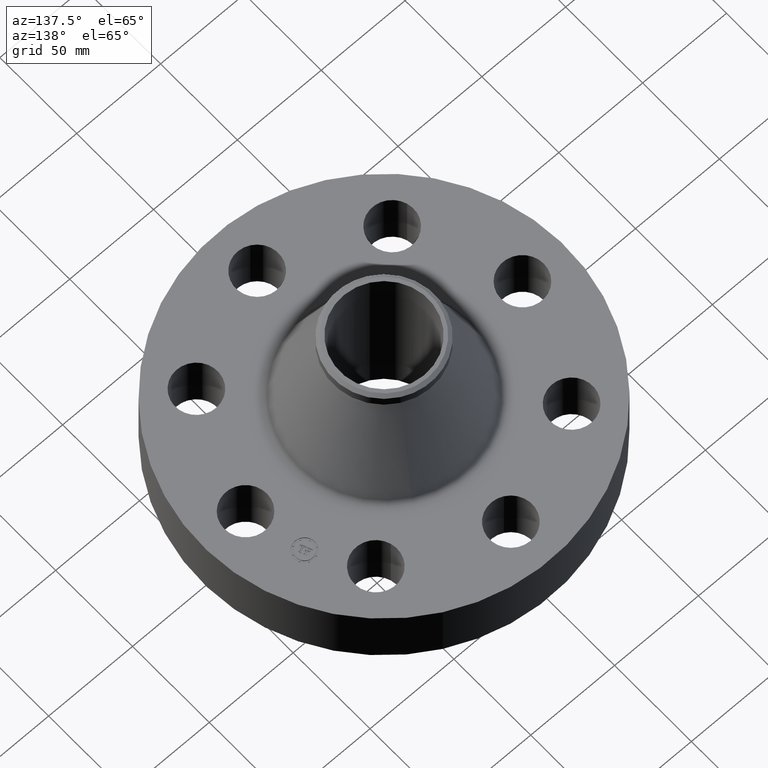
[diagram: clean part render]
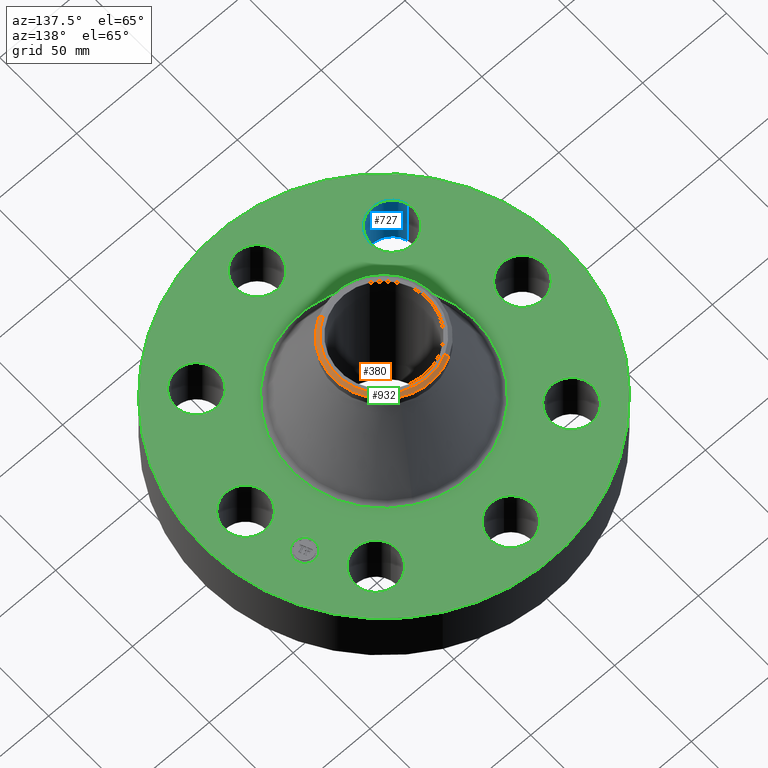
[diagram: same view with three faces highlighted in distinct colors, each labeled with its STEP entity id]
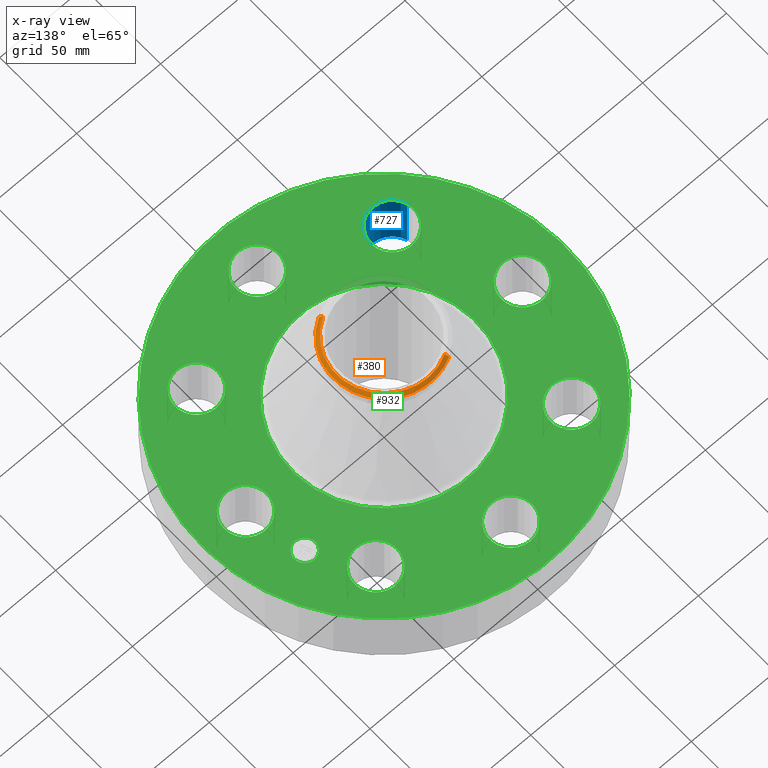
[diagram: x-ray of the same camera — body ghosted, the three highlighted faces saturated]
A machine part, auxiliary view with three faces highlighted in distinct colors.
The next image is the same camera in x-ray (body ghosted, the three faces saturated) — at least one of them is partly hidden behind the body in this view.
Their STEP definitions:

[orange] entity #380 — the highlighted conical surface has half-angle 52.5 deg.
#270=AXIS2_PLACEMENT_3D('Circle Axis2P3D',#268,#269,$) ;
#297=AXIS2_PLACEMENT_3D('Circle Axis2P3D',#295,#296,$) ;
#311=AXIS2_PLACEMENT_3D('Cone Axis2P3D',#308,#309,#310) ;
#347=AXIS2_PLACEMENT_3D('Circle Axis2P3D',#345,#346,$) ;
#265=CARTESIAN_POINT('Vertex',(0.570516390941,1.04432324865,3.94033277427)) ;
#268=CARTESIAN_POINT('Axis2P3D Location',(0.,0.,3.94033277427)) ;
#272=CARTESIAN_POINT('Vertex',(0.570516390941,-1.04432324865,3.94033277427)) ;
#292=CARTESIAN_POINT('Vertex',(-0.570516390941,1.04432324865,3.94033277427)) ;
#295=CARTESIAN_POINT('Axis2P3D Location',(0.,0.,3.94033277427)) ;
#308=CARTESIAN_POINT('Axis2P3D Location',(0.,0.,4.00000000002)) ;
#313=CARTESIAN_POINT('Line Origine',(0.55187636375,-1.01020290775,3.97016638714)) ;
#317=CARTESIAN_POINT('Vertex',(0.533236336559,-0.976082566843,4.00000000002)) ;
#324=CARTESIAN_POINT('Vertex',(-0.533236336559,0.976082566843,4.00000000002)) ;
#327=CARTESIAN_POINT('Line Origine',(-0.55187636375,1.01020290775,3.97016638714)) ;
#345=CARTESIAN_POINT('Axis2P3D Location',(0.,0.,4.00000000002)) ;
#269=DIRECTION('Axis2P3D Direction',(0.,0.,-0.0393700787402)) ;
#296=DIRECTION('Axis2P3D Direction',(0.,0.,-0.0393700787402)) ;
#309=DIRECTION('Axis2P3D Direction',(-0.,-0.,-0.0393700787402)) ;
#310=DIRECTION('Axis2P3D XDirection',(-0.0188750212049,0.0345504945626,0.)) ;
#314=DIRECTION('Vector Direction',(0.014974561121,-0.02741075027,-0.023966985394)) ;
#328=DIRECTION('Vector Direction',(-0.014974561121,0.02741075027,-0.023966985394)) ;
#346=DIRECTION('Axis2P3D Direction',(0.,0.,-0.0393700787402)) ;
#315=VECTOR('Line Direction',#314,0.0393700787402) ;
#329=VECTOR('Line Direction',#328,0.0393700787402) ;
#374=ORIENTED_EDGE('',*,*,#331,.F.) ;
#375=ORIENTED_EDGE('',*,*,#349,.F.) ;
#376=ORIENTED_EDGE('',*,*,#319,.T.) ;
#377=ORIENTED_EDGE('',*,*,#274,.T.) ;
#378=ORIENTED_EDGE('',*,*,#299,.F.) ;
#380=ADVANCED_FACE('PartBody',(#379),#312,.T.) ;
#271=CIRCLE('generated circle',#270,1.19) ;
#298=CIRCLE('generated circle',#297,1.19) ;
#348=CIRCLE('generated circle',#347,1.11224015748) ;
#312=CONICAL_SURFACE('Cone',#311,1.11224015748,0.916297857297) ;
#274=EDGE_CURVE('',#273,#266,#271,.F.) ;
#299=EDGE_CURVE('',#293,#266,#298,.T.) ;
#319=EDGE_CURVE('',#318,#273,#316,.T.) ;
#331=EDGE_CURVE('',#325,#293,#330,.T.) ;
#349=EDGE_CURVE('',#318,#325,#348,.F.) ;
#373=EDGE_LOOP('',(#374,#375,#376,#377,#378)) ;
#379=FACE_OUTER_BOUND('',#373,.T.) ;
#316=LINE('Line',#313,#315) ;
#330=LINE('Line',#327,#329) ;
#266=VERTEX_POINT('',#265) ;
#273=VERTEX_POINT('',#272) ;
#293=VERTEX_POINT('',#292) ;
#318=VERTEX_POINT('',#317) ;
#325=VERTEX_POINT('',#324) ;

[blue] entity #727 — the highlighted cylindrical surface (edge-blend (fillet) strip) has radius 12.7 mm, axis along (-0, 0, -1).
#479=AXIS2_PLACEMENT_3D('Circle Axis2P3D',#477,#478,$) ;
#700=AXIS2_PLACEMENT_3D('Cylinder Axis2P3D',#697,#698,#699) ;
#718=AXIS2_PLACEMENT_3D('Circle Axis2P3D',#716,#717,$) ;
#477=CARTESIAN_POINT('Axis2P3D Location',(-2.29809703887,-2.29809703887,0.)) ;
#481=CARTESIAN_POINT('Vertex',(-1.81832222387,-2.15732727329,0.)) ;
#483=CARTESIAN_POINT('Vertex',(-2.77787185386,-2.43886680444,0.)) ;
#697=CARTESIAN_POINT('Axis2P3D Location',(-2.29809703887,-2.29809703887,1.49606299213)) ;
#702=CARTESIAN_POINT('Line Origine',(-1.81832222387,-2.15732727329,0.750000000003)) ;
#706=CARTESIAN_POINT('Vertex',(-1.81832222387,-2.15732727329,1.50000000001)) ;
#709=CARTESIAN_POINT('Line Origine',(-2.77787185386,-2.43886680444,0.750000000003)) ;
#713=CARTESIAN_POINT('Vertex',(-2.77787185386,-2.43886680444,1.50000000001)) ;
#716=CARTESIAN_POINT('Axis2P3D Location',(-2.29809703887,-2.29809703887,1.50000000001)) ;
#478=DIRECTION('Axis2P3D Direction',(0.,0.,-0.0393700787402)) ;
#698=DIRECTION('Axis2P3D Direction',(-0.,0.,-0.0393700787402)) ;
#699=DIRECTION('Axis2P3D XDirection',(-0.0377775444876,-0.0110842335096,0.)) ;
#703=DIRECTION('Vector Direction',(0.,0.,-0.0393700787402)) ;
#710=DIRECTION('Vector Direction',(0.,0.,-0.0393700787402)) ;
#717=DIRECTION('Axis2P3D Direction',(-0.,0.,-0.0393700787402)) ;
#704=VECTOR('Line Direction',#703,0.0393700787402) ;
#711=VECTOR('Line Direction',#710,0.0393700787402) ;
#722=ORIENTED_EDGE('',*,*,#708,.F.) ;
#723=ORIENTED_EDGE('',*,*,#485,.T.) ;
#724=ORIENTED_EDGE('',*,*,#715,.T.) ;
#725=ORIENTED_EDGE('',*,*,#720,.F.) ;
#727=ADVANCED_FACE('PartBody',(#726),#701,.F.) ;
#480=CIRCLE('generated circle',#479,0.500000000002) ;
#719=CIRCLE('generated circle',#718,0.500000000002) ;
#701=CYLINDRICAL_SURFACE('generated cylinder',#700,0.500000000002) ;
#485=EDGE_CURVE('',#482,#484,#480,.T.) ;
#708=EDGE_CURVE('',#482,#707,#705,.F.) ;
#715=EDGE_CURVE('',#484,#714,#712,.F.) ;
#720=EDGE_CURVE('',#707,#714,#719,.T.) ;
#721=EDGE_LOOP('',(#722,#723,#724,#725)) ;
#726=FACE_OUTER_BOUND('',#721,.T.) ;
#705=LINE('Line',#702,#704) ;
#712=LINE('Line',#709,#711) ;
#482=VERTEX_POINT('',#481) ;
#484=VERTEX_POINT('',#483) ;
#707=VERTEX_POINT('',#706) ;
#714=VERTEX_POINT('',#713) ;

[green] entity #932 — the highlighted planar face has unit normal (0, 0, -1).
#65=AXIS2_PLACEMENT_3D('Circle Axis2P3D',#63,#64,$) ;
#82=AXIS2_PLACEMENT_3D('Circle Axis2P3D',#80,#81,$) ;
#115=AXIS2_PLACEMENT_3D('Circle Axis2P3D',#113,#114,$) ;
#139=AXIS2_PLACEMENT_3D('Circle Axis2P3D',#137,#138,$) ;
#156=AXIS2_PLACEMENT_3D('Circle Axis2P3D',#154,#155,$) ;
#191=AXIS2_PLACEMENT_3D('Circle Axis2P3D',#189,#190,$) ;
#589=AXIS2_PLACEMENT_3D('Circle Axis2P3D',#587,#588,$) ;
#601=AXIS2_PLACEMENT_3D('Circle Axis2P3D',#599,#600,$) ;
#632=AXIS2_PLACEMENT_3D('Circle Axis2P3D',#630,#631,$) ;
#644=AXIS2_PLACEMENT_3D('Circle Axis2P3D',#642,#643,$) ;
#675=AXIS2_PLACEMENT_3D('Circle Axis2P3D',#673,#674,$) ;
#687=AXIS2_PLACEMENT_3D('Circle Axis2P3D',#685,#686,$) ;
#718=AXIS2_PLACEMENT_3D('Circle Axis2P3D',#716,#717,$) ;
#730=AXIS2_PLACEMENT_3D('Circle Axis2P3D',#728,#729,$) ;
#761=AXIS2_PLACEMENT_3D('Circle Axis2P3D',#759,#760,$) ;
#773=AXIS2_PLACEMENT_3D('Circle Axis2P3D',#771,#772,$) ;
#804=AXIS2_PLACEMENT_3D('Circle Axis2P3D',#802,#803,$) ;
#816=AXIS2_PLACEMENT_3D('Circle Axis2P3D',#814,#815,$) ;
#847=AXIS2_PLACEMENT_3D('Circle Axis2P3D',#845,#846,$) ;
#859=AXIS2_PLACEMENT_3D('Circle Axis2P3D',#857,#858,$) ;
#872=AXIS2_PLACEMENT_3D('Plane Axis2P3D',#869,#870,#871) ;
#916=AXIS2_PLACEMENT_3D('Circle Axis2P3D',#914,#915,$) ;
#925=AXIS2_PLACEMENT_3D('Circle Axis2P3D',#923,#924,$) ;
#46=CARTESIAN_POINT('Vertex',(2.81120871907,0.239712769303,1.50000000001)) ;
#60=CARTESIAN_POINT('Vertex',(3.68879128096,-0.239712769303,1.50000000001)) ;
#63=CARTESIAN_POINT('Axis2P3D Location',(3.25000000001,0.,1.50000000001)) ;
#80=CARTESIAN_POINT('Axis2P3D Location',(3.25000000001,0.,1.50000000001)) ;
#110=CARTESIAN_POINT('Vertex',(-2.03755853908,-3.72972588805,1.50000000001)) ;
#113=CARTESIAN_POINT('Axis2P3D Location',(0.,0.,1.50000000001)) ;
#117=CARTESIAN_POINT('Vertex',(2.03755853908,3.72972588805,1.50000000001)) ;
#137=CARTESIAN_POINT('Axis2P3D Location',(0.,0.,1.50000000001)) ;
#154=CARTESIAN_POINT('Axis2P3D Location',(0.,0.,1.50000000001)) ;
#158=CARTESIAN_POINT('Vertex',(1.02675874759,1.87946928063,1.50000000001)) ;
#160=CARTESIAN_POINT('Vertex',(-1.02675874759,-1.87946928063,1.50000000001)) ;
#189=CARTESIAN_POINT('Axis2P3D Location',(0.,0.,1.50000000001)) ;
#577=CARTESIAN_POINT('Vertex',(-2.15732727329,1.81832222387,1.50000000001)) ;
#584=CARTESIAN_POINT('Vertex',(-2.43886680444,2.77787185386,1.50000000001)) ;
#587=CARTESIAN_POINT('Axis2P3D Location',(-2.29809703887,2.29809703887,1.50000000001)) ;
#599=CARTESIAN_POINT('Axis2P3D Location',(-2.29809703887,2.29809703887,1.50000000001)) ;
#620=CARTESIAN_POINT('Vertex',(0.239712769303,-2.81120871907,1.50000000001)) ;
#627=CARTESIAN_POINT('Vertex',(-0.239712769303,-3.68879128096,1.50000000001)) ;
#630=CARTESIAN_POINT('Axis2P3D Location',(-3.6047736424E-016,-3.25000000001,1.50000000001)) ;
#642=CARTESIAN_POINT('Axis2P3D Location',(-3.6047736424E-016,-3.25000000001,1.50000000001)) ;
#663=CARTESIAN_POINT('Vertex',(-0.239712769303,2.81120871907,1.50000000001)) ;
#670=CARTESIAN_POINT('Vertex',(0.239712769303,3.68879128096,1.50000000001)) ;
#673=CARTESIAN_POINT('Axis2P3D Location',(-5.97015314587E-016,3.25000000001,1.50000000001)) ;
#685=CARTESIAN_POINT('Axis2P3D Location',(-5.97015314587E-016,3.25000000001,1.50000000001)) ;
#706=CARTESIAN_POINT('Vertex',(-1.81832222387,-2.15732727329,1.50000000001)) ;
#713=CARTESIAN_POINT('Vertex',(-2.77787185386,-2.43886680444,1.50000000001)) ;
#716=CARTESIAN_POINT('Axis2P3D Location',(-2.29809703887,-2.29809703887,1.50000000001)) ;
#728=CARTESIAN_POINT('Axis2P3D Location',(-2.29809703887,-2.29809703887,1.50000000001)) ;
#749=CARTESIAN_POINT('Vertex',(1.81832222387,2.15732727329,1.50000000001)) ;
#756=CARTESIAN_POINT('Vertex',(2.77787185386,2.43886680444,1.50000000001)) ;
#759=CARTESIAN_POINT('Axis2P3D Location',(2.29809703887,2.29809703887,1.50000000001)) ;
#771=CARTESIAN_POINT('Axis2P3D Location',(2.29809703887,2.29809703887,1.50000000001)) ;
#792=CARTESIAN_POINT('Vertex',(-2.81120871907,-0.239712769303,1.50000000001)) ;
#799=CARTESIAN_POINT('Vertex',(-3.68879128096,0.239712769303,1.50000000001)) ;
#802=CARTESIAN_POINT('Axis2P3D Location',(-3.25000000001,-3.98010209724E-016,1.50000000001)) ;
#814=CARTESIAN_POINT('Axis2P3D Location',(-3.25000000001,-3.98010209724E-016,1.50000000001)) ;
#835=CARTESIAN_POINT('Vertex',(2.15732727329,-1.81832222387,1.50000000001)) ;
#842=CARTESIAN_POINT('Vertex',(2.43886680444,-2.77787185386,1.50000000001)) ;
#845=CARTESIAN_POINT('Axis2P3D Location',(2.29809703887,-2.29809703887,1.50000000001)) ;
#857=CARTESIAN_POINT('Axis2P3D Location',(2.29809703887,-2.29809703887,1.50000000001)) ;
#869=CARTESIAN_POINT('Axis2P3D Location',(0.,4.25000000002,1.50000000001)) ;
#914=CARTESIAN_POINT('Axis2P3D Location',(3.00260848067,1.24372115519,1.50000000001)) ;
#918=CARTESIAN_POINT('Vertex',(2.90789433116,1.47238133949,1.50000000001)) ;
#920=CARTESIAN_POINT('Vertex',(3.09732263018,1.01506097089,1.50000000001)) ;
#923=CARTESIAN_POINT('Axis2P3D Location',(3.00260848067,1.24372115519,1.50000000001)) ;
#64=DIRECTION('Axis2P3D Direction',(0.,-0.,-0.0393700787402)) ;
#81=DIRECTION('Axis2P3D Direction',(0.,-0.,-0.0393700787402)) ;
#114=DIRECTION('Axis2P3D Direction',(0.,0.,-0.0393700787402)) ;
#138=DIRECTION('Axis2P3D Direction',(0.,0.,-0.0393700787402)) ;
#155=DIRECTION('Axis2P3D Direction',(0.,0.,-0.0393700787402)) ;
#190=DIRECTION('Axis2P3D Direction',(0.,0.,-0.0393700787402)) ;
#588=DIRECTION('Axis2P3D Direction',(0.,0.,-0.0393700787402)) ;
#600=DIRECTION('Axis2P3D Direction',(0.,0.,-0.0393700787402)) ;
#631=DIRECTION('Axis2P3D Direction',(0.,-0.,-0.0393700787402)) ;
#643=DIRECTION('Axis2P3D Direction',(0.,-0.,-0.0393700787402)) ;
#674=DIRECTION('Axis2P3D Direction',(0.,0.,-0.0393700787402)) ;
#686=DIRECTION('Axis2P3D Direction',(0.,0.,-0.0393700787402)) ;
#717=DIRECTION('Axis2P3D Direction',(-0.,0.,-0.0393700787402)) ;
#729=DIRECTION('Axis2P3D Direction',(-0.,0.,-0.0393700787402)) ;
#760=DIRECTION('Axis2P3D Direction',(0.,0.,-0.0393700787402)) ;
#772=DIRECTION('Axis2P3D Direction',(0.,0.,-0.0393700787402)) ;
#803=DIRECTION('Axis2P3D Direction',(-0.,0.,-0.0393700787402)) ;
#815=DIRECTION('Axis2P3D Direction',(-0.,0.,-0.0393700787402)) ;
#846=DIRECTION('Axis2P3D Direction',(0.,-0.,-0.0393700787402)) ;
#858=DIRECTION('Axis2P3D Direction',(0.,-0.,-0.0393700787402)) ;
#870=DIRECTION('Axis2P3D Direction',(0.,0.,-0.0393700787402)) ;
#871=DIRECTION('Axis2P3D XDirection',(0.0393700787402,0.,0.)) ;
#915=DIRECTION('Axis2P3D Direction',(0.,0.,-0.0393700787402)) ;
#924=DIRECTION('Axis2P3D Direction',(0.,0.,-0.0393700787402)) ;
#875=ORIENTED_EDGE('',*,*,#141,.F.) ;
#876=ORIENTED_EDGE('',*,*,#119,.F.) ;
#879=ORIENTED_EDGE('',*,*,#67,.T.) ;
#880=ORIENTED_EDGE('',*,*,#84,.T.) ;
#883=ORIENTED_EDGE('',*,*,#193,.T.) ;
#884=ORIENTED_EDGE('',*,*,#162,.T.) ;
#887=ORIENTED_EDGE('',*,*,#861,.T.) ;
#888=ORIENTED_EDGE('',*,*,#849,.T.) ;
#891=ORIENTED_EDGE('',*,*,#646,.T.) ;
#892=ORIENTED_EDGE('',*,*,#634,.T.) ;
#895=ORIENTED_EDGE('',*,*,#732,.T.) ;
#896=ORIENTED_EDGE('',*,*,#720,.T.) ;
#899=ORIENTED_EDGE('',*,*,#818,.T.) ;
#900=ORIENTED_EDGE('',*,*,#806,.T.) ;
#903=ORIENTED_EDGE('',*,*,#603,.T.) ;
#904=ORIENTED_EDGE('',*,*,#591,.T.) ;
#907=ORIENTED_EDGE('',*,*,#689,.T.) ;
#908=ORIENTED_EDGE('',*,*,#677,.T.) ;
#911=ORIENTED_EDGE('',*,*,#775,.T.) ;
#912=ORIENTED_EDGE('',*,*,#763,.T.) ;
#929=ORIENTED_EDGE('',*,*,#922,.T.) ;
#930=ORIENTED_EDGE('',*,*,#927,.T.) ;
#881=FACE_BOUND('',#878,.T.) ;
#885=FACE_BOUND('',#882,.T.) ;
#889=FACE_BOUND('',#886,.T.) ;
#893=FACE_BOUND('',#890,.T.) ;
#897=FACE_BOUND('',#894,.T.) ;
#901=FACE_BOUND('',#898,.T.) ;
#905=FACE_BOUND('',#902,.T.) ;
#909=FACE_BOUND('',#906,.T.) ;
#913=FACE_BOUND('',#910,.T.) ;
#931=FACE_BOUND('',#928,.T.) ;
#932=ADVANCED_FACE('PartBody',(#877,#881,#885,#889,#893,#897,#901,#905,#909,#913,#931),#873,.F.) ;
#66=CIRCLE('generated circle',#65,0.500000000002) ;
#83=CIRCLE('generated circle',#82,0.500000000002) ;
#116=CIRCLE('generated circle',#115,4.25000000002) ;
#140=CIRCLE('generated circle',#139,4.25000000002) ;
#157=CIRCLE('generated circle',#156,2.14164383187) ;
#192=CIRCLE('generated circle',#191,2.14164383187) ;
#590=CIRCLE('generated circle',#589,0.500000000002) ;
#602=CIRCLE('generated circle',#601,0.500000000002) ;
#633=CIRCLE('generated circle',#632,0.500000000002) ;
#645=CIRCLE('generated circle',#644,0.500000000002) ;
#676=CIRCLE('generated circle',#675,0.500000000002) ;
#688=CIRCLE('generated circle',#687,0.500000000002) ;
#719=CIRCLE('generated circle',#718,0.500000000002) ;
#731=CIRCLE('generated circle',#730,0.500000000002) ;
#762=CIRCLE('generated circle',#761,0.500000000002) ;
#774=CIRCLE('generated circle',#773,0.500000000002) ;
#805=CIRCLE('generated circle',#804,0.500000000002) ;
#817=CIRCLE('generated circle',#816,0.500000000002) ;
#848=CIRCLE('generated circle',#847,0.500000000002) ;
#860=CIRCLE('generated circle',#859,0.500000000002) ;
#917=CIRCLE('generated circle',#916,0.247500000001) ;
#926=CIRCLE('generated circle',#925,0.247500000001) ;
#67=EDGE_CURVE('',#47,#61,#66,.T.) ;
#84=EDGE_CURVE('',#61,#47,#83,.T.) ;
#119=EDGE_CURVE('',#111,#118,#116,.T.) ;
#141=EDGE_CURVE('',#118,#111,#140,.T.) ;
#162=EDGE_CURVE('',#159,#161,#157,.T.) ;
#193=EDGE_CURVE('',#161,#159,#192,.T.) ;
#591=EDGE_CURVE('',#578,#585,#590,.T.) ;
#603=EDGE_CURVE('',#585,#578,#602,.T.) ;
#634=EDGE_CURVE('',#621,#628,#633,.T.) ;
#646=EDGE_CURVE('',#628,#621,#645,.T.) ;
#677=EDGE_CURVE('',#664,#671,#676,.T.) ;
#689=EDGE_CURVE('',#671,#664,#688,.T.) ;
#720=EDGE_CURVE('',#707,#714,#719,.T.) ;
#732=EDGE_CURVE('',#714,#707,#731,.T.) ;
#763=EDGE_CURVE('',#750,#757,#762,.T.) ;
#775=EDGE_CURVE('',#757,#750,#774,.T.) ;
#806=EDGE_CURVE('',#793,#800,#805,.T.) ;
#818=EDGE_CURVE('',#800,#793,#817,.T.) ;
#849=EDGE_CURVE('',#836,#843,#848,.T.) ;
#861=EDGE_CURVE('',#843,#836,#860,.T.) ;
#922=EDGE_CURVE('',#919,#921,#917,.T.) ;
#927=EDGE_CURVE('',#921,#919,#926,.T.) ;
#874=EDGE_LOOP('',(#875,#876)) ;
#878=EDGE_LOOP('',(#879,#880)) ;
#882=EDGE_LOOP('',(#883,#884)) ;
#886=EDGE_LOOP('',(#887,#888)) ;
#890=EDGE_LOOP('',(#891,#892)) ;
#894=EDGE_LOOP('',(#895,#896)) ;
#898=EDGE_LOOP('',(#899,#900)) ;
#902=EDGE_LOOP('',(#903,#904)) ;
#906=EDGE_LOOP('',(#907,#908)) ;
#910=EDGE_LOOP('',(#911,#912)) ;
#928=EDGE_LOOP('',(#929,#930)) ;
#877=FACE_OUTER_BOUND('',#874,.T.) ;
#873=PLANE('',#872) ;
#47=VERTEX_POINT('',#46) ;
#61=VERTEX_POINT('',#60) ;
#111=VERTEX_POINT('',#110) ;
#118=VERTEX_POINT('',#117) ;
#159=VERTEX_POINT('',#158) ;
#161=VERTEX_POINT('',#160) ;
#578=VERTEX_POINT('',#577) ;
#585=VERTEX_POINT('',#584) ;
#621=VERTEX_POINT('',#620) ;
#628=VERTEX_POINT('',#627) ;
#664=VERTEX_POINT('',#663) ;
#671=VERTEX_POINT('',#670) ;
#707=VERTEX_POINT('',#706) ;
#714=VERTEX_POINT('',#713) ;
#750=VERTEX_POINT('',#749) ;
#757=VERTEX_POINT('',#756) ;
#793=VERTEX_POINT('',#792) ;
#800=VERTEX_POINT('',#799) ;
#836=VERTEX_POINT('',#835) ;
#843=VERTEX_POINT('',#842) ;
#919=VERTEX_POINT('',#918) ;
#921=VERTEX_POINT('',#920) ;